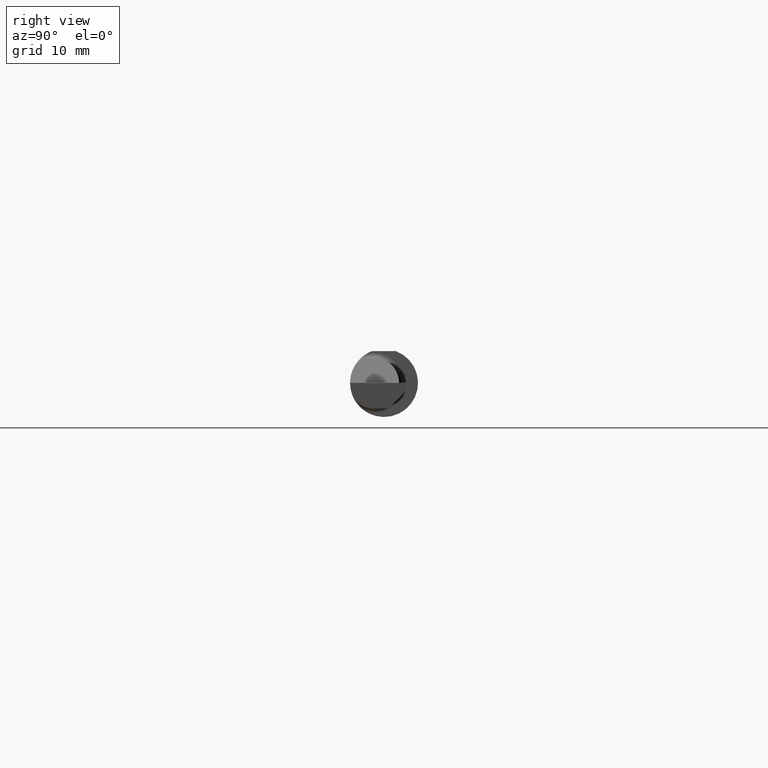
[diagram: clean part render]
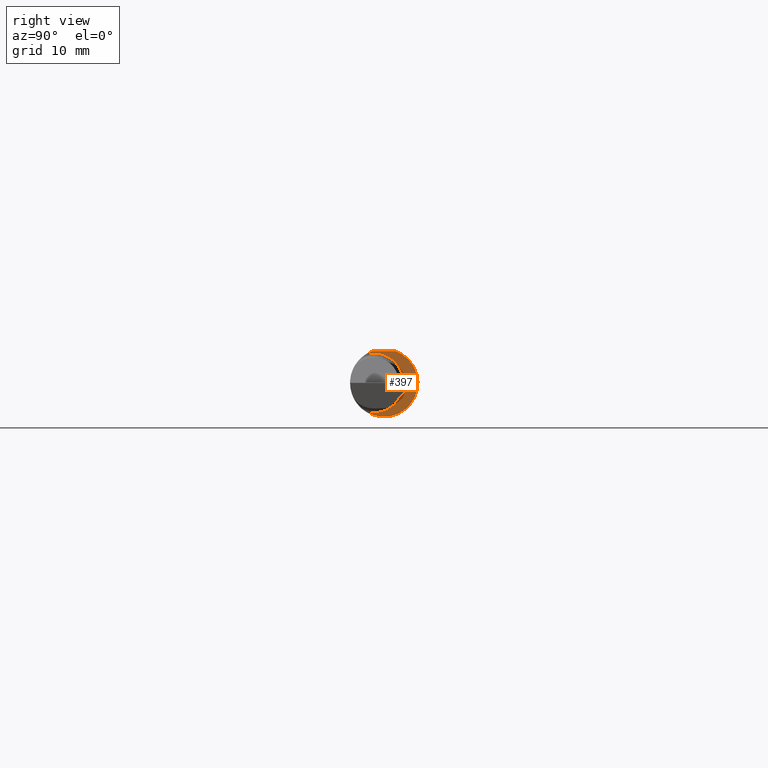
[diagram: same view with one face highlighted and labeled with its STEP entity id]
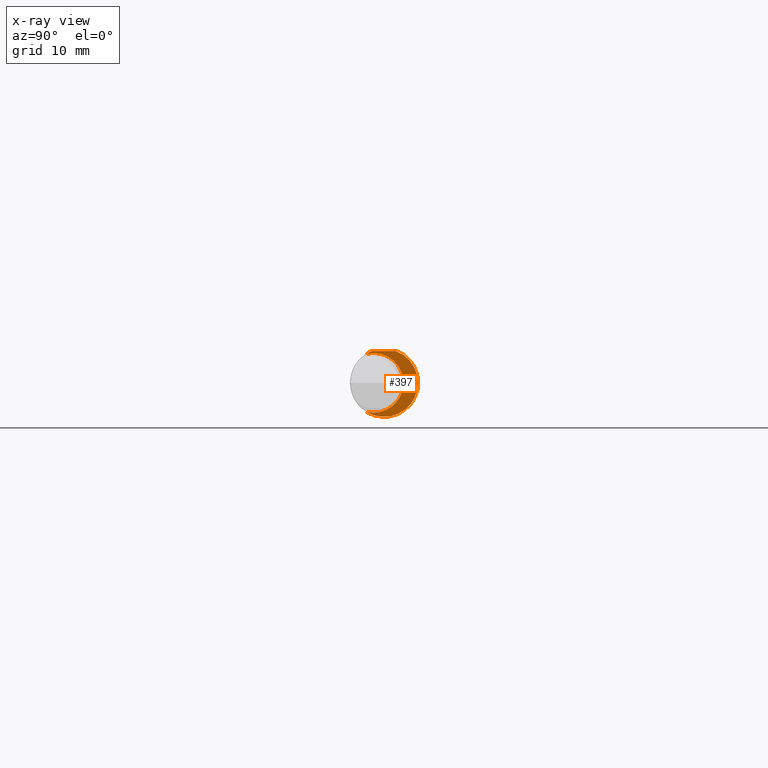
[diagram: x-ray of the same camera — body ghosted, the highlighted face saturated]
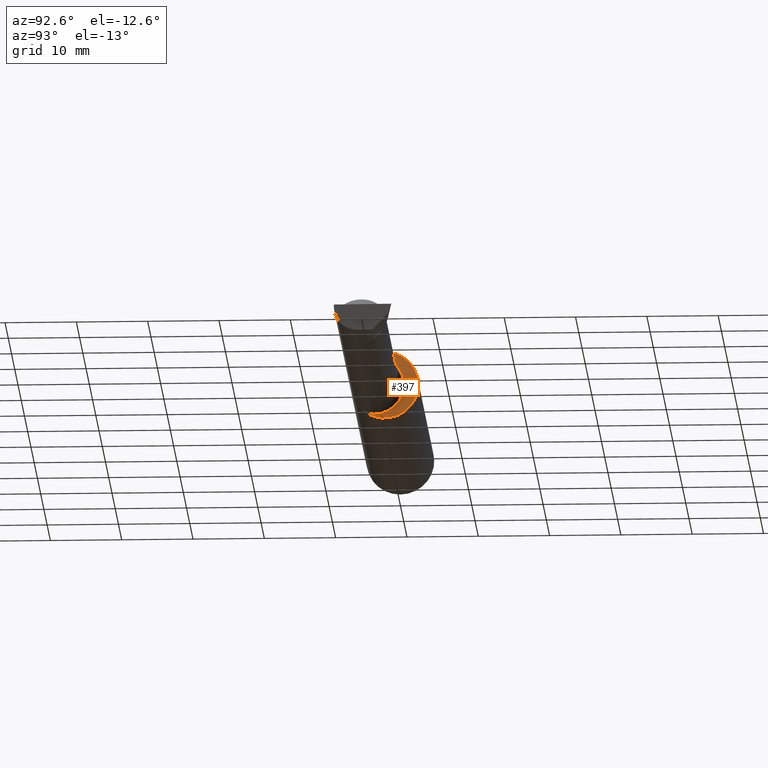
[diagram: same view with one face highlighted and labeled with its STEP entity id]
A machine part, right view. The second image highlights one B-rep face of the part: STEP entity #397.
The next image is the same camera in x-ray: the body ghosted, the highlighted face saturated — about 3% of this face is hidden behind the body in this view.
A second angle (auxiliary view) of the same face is appended — the face is thin or edge-on in the first view.
In plain terms, the highlighted planar face has unit normal (1, 0, 0).
Its self-contained STEP definition (entity closure, byte-faithful):
#10 = DIRECTION ( 'NONE',  ( -4.268512490100411279E-18, 1.000000000000000000, 0.000000000000000000 ) ) ;
#18 = CIRCLE ( 'NONE', #256, 0.1873499999999999888 ) ;
#42 = CARTESIAN_POINT ( 'NONE',  ( 1.950000000000000178, -0.05740000000000000657, 0.000000000000000000 ) ) ;
#58 = LINE ( 'NONE', #263, #237 ) ;
#62 = DIRECTION ( 'NONE',  ( 0.000000000000000000, 1.000000000000000000, 0.000000000000000000 ) ) ;
#91 = AXIS2_PLACEMENT_3D ( 'NONE', #638, #429, #634 ) ;
#169 = EDGE_LOOP ( 'NONE', ( #346, #236, #412, #647 ) ) ;
#188 = DIRECTION ( 'NONE',  ( -1.000000000000000000, -4.268512490100411279E-18, -0.000000000000000000 ) ) ;
#227 = DIRECTION ( 'NONE',  ( 1.000000000000000000, 4.268512490100411279E-18, 0.000000000000000000 ) ) ;
#229 = EDGE_CURVE ( 'NONE', #339, #405, #611, .T. ) ;
#234 = CARTESIAN_POINT ( 'NONE',  ( 1.950000000000000178, -0.09715400696864148755, 0.1601908905959922580 ) ) ;
#236 = ORIENTED_EDGE ( 'NONE', *, *, #368, .T. ) ;
#237 = VECTOR ( 'NONE', #596, 39.37007874015748143 ) ;
#238 = CARTESIAN_POINT ( 'NONE',  ( 1.950000000000000178, 0.06597272163553663527, 0.1753499999999999781 ) ) ;
#256 = AXIS2_PLACEMENT_3D ( 'NONE', #320, #504, #62 ) ;
#263 = CARTESIAN_POINT ( 'NONE',  ( 1.950000000000000178, 0.2373500000000000332, 0.1753499999999999504 ) ) ;
#320 = CARTESIAN_POINT ( 'NONE',  ( 1.950000000000000178, 0.000000000000000000, 0.000000000000000000 ) ) ;
#339 = VERTEX_POINT ( 'NONE', #543 ) ;
#346 = ORIENTED_EDGE ( 'NONE', *, *, #392, .T. ) ;
#365 = CARTESIAN_POINT ( 'NONE',  ( 1.950000000000000178, 0.1076499999999998430, 0.000000000000000000 ) ) ;
#368 = EDGE_CURVE ( 'NONE', #599, #339, #58, .T. ) ;
#370 = CARTESIAN_POINT ( 'NONE',  ( 1.950000000000000178, -0.09715400696864148755, -0.1601908905959922580 ) ) ;
#392 = EDGE_CURVE ( 'NONE', #402, #599, #18, .T. ) ;
#397 = ADVANCED_FACE ( 'NONE', ( #452 ), #413, .T. ) ;
#402 = VERTEX_POINT ( 'NONE', #370 ) ;
#405 = VERTEX_POINT ( 'NONE', #234 ) ;
#412 = ORIENTED_EDGE ( 'NONE', *, *, #229, .T. ) ;
#413 = PLANE ( 'NONE',  #626 ) ;
#429 = DIRECTION ( 'NONE',  ( 1.000000000000000000, 4.268512490100411279E-18, 0.000000000000000000 ) ) ;
#452 = FACE_OUTER_BOUND ( 'NONE', #169, .T. ) ;
#504 = DIRECTION ( 'NONE',  ( 1.000000000000000000, 4.268512490100411279E-18, 0.000000000000000000 ) ) ;
#528 = AXIS2_PLACEMENT_3D ( 'NONE', #42, #188, #574 ) ;
#543 = CARTESIAN_POINT ( 'NONE',  ( 1.950000000000000178, -0.06597272163553659363, 0.1753499999999999781 ) ) ;
#574 = DIRECTION ( 'NONE',  ( 0.000000000000000000, -1.000000000000000000, 0.000000000000000000 ) ) ;
#584 = EDGE_CURVE ( 'NONE', #405, #402, #635, .T. ) ;
#596 = DIRECTION ( 'NONE',  ( 4.268512490100411279E-18, -1.000000000000000000, 1.438723400918613551E-16 ) ) ;
#599 = VERTEX_POINT ( 'NONE', #238 ) ;
#611 = CIRCLE ( 'NONE', #91, 0.1873499999999999888 ) ;
#626 = AXIS2_PLACEMENT_3D ( 'NONE', #365, #227, #10 ) ;
#634 = DIRECTION ( 'NONE',  ( 0.000000000000000000, 1.000000000000000000, 0.000000000000000000 ) ) ;
#635 = CIRCLE ( 'NONE', #528, 0.1650499999999998635 ) ;
#638 = CARTESIAN_POINT ( 'NONE',  ( 1.950000000000000178, 0.000000000000000000, 0.000000000000000000 ) ) ;
#647 = ORIENTED_EDGE ( 'NONE', *, *, #584, .T. ) ;